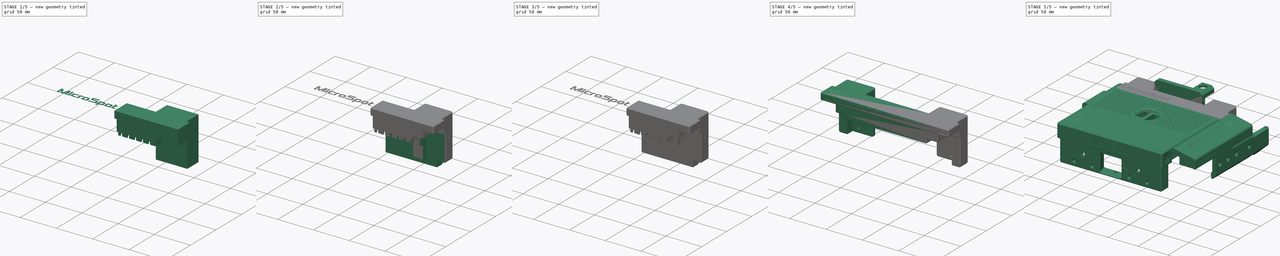
[diagram: build sequence overview — one tinted view per stage of 5, left to right]
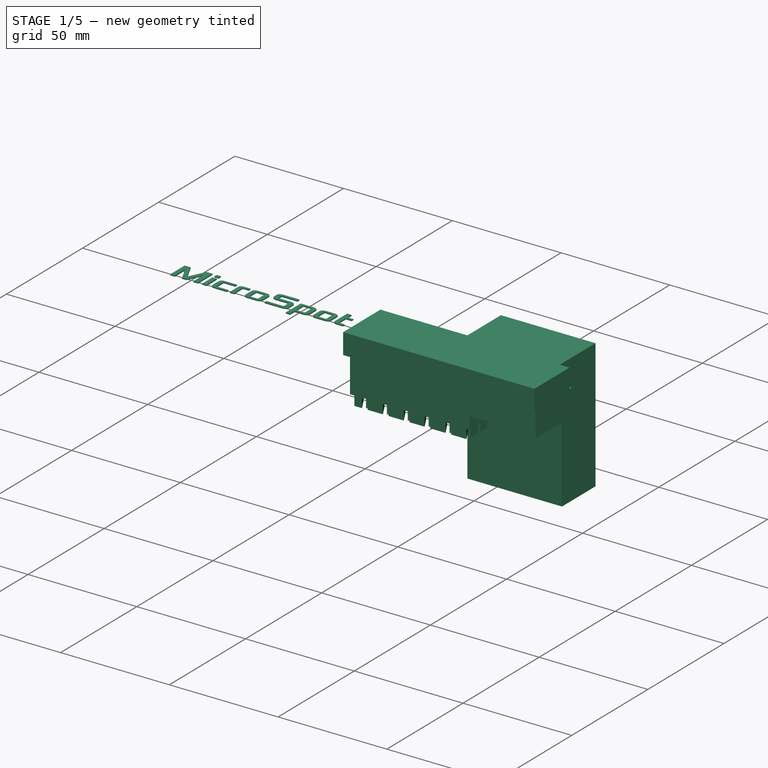
[diagram: stage 1 of 5 — iso view after this stage's code; geometry added in this stage tinted green]
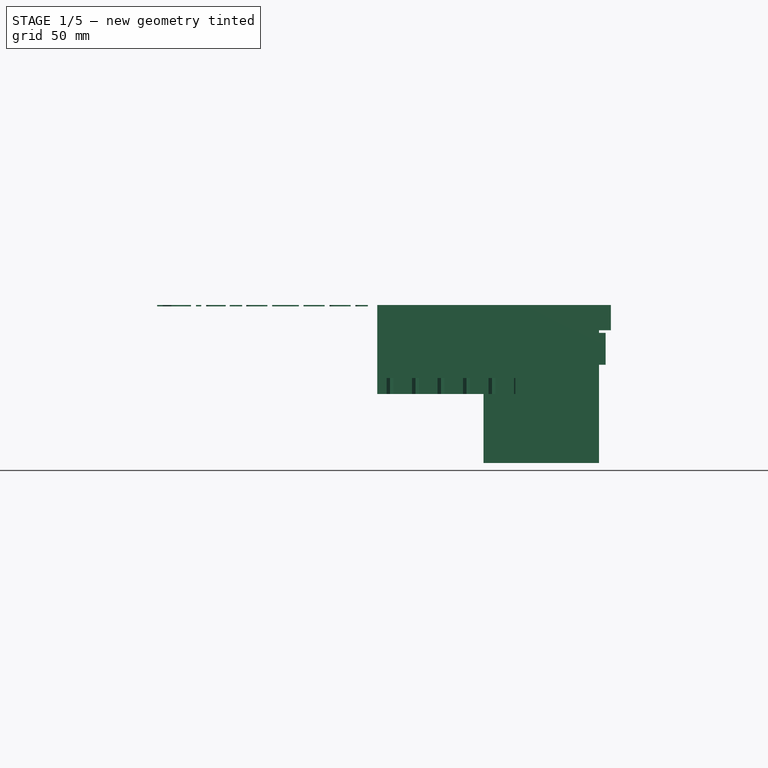
[diagram: stage 1 of 5 — front view after this stage's code; geometry added in this stage tinted green]
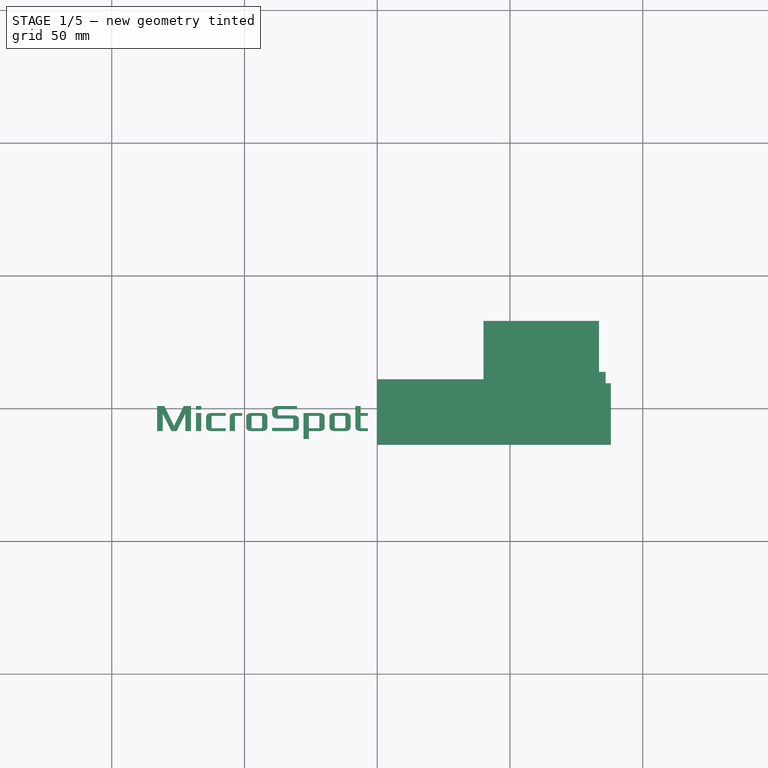
[diagram: stage 1 of 5 — top view after this stage's code; geometry added in this stage tinted green]
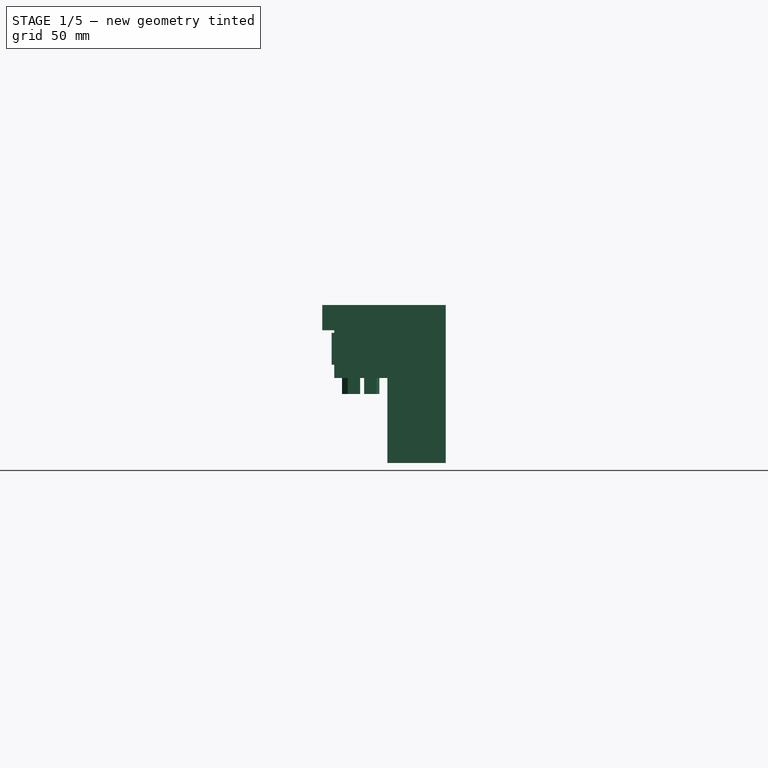
[diagram: stage 1 of 5 — right view after this stage's code; geometry added in this stage tinted green]
FCSTD DOCUMENT  (FreeCAD 0.16RUnknown)
Label: UpperBackCover
License: All rights reserved
LicenseURL: http://en.wikipedia.org/wiki/All_rights_reserved
objects: Part::FeaturePython×36, Part::Cut×17, Sketcher::SketchObject×12, PartDesign::Pad×8, App::DocumentObjectGroup×7, Part::Box×5, Part::Fillet×4, Part::MultiFuse×3, Part::Feature×2, Part::Mirroring×2, PartDesign::Revolution×2, Part::MultiCommon×2, Spreadsheet::Sheet×1, Part::Sweep×1, Part::Part2DObjectPython×1, Part::Extrusion×1, Part::Chamfer×1
note: 107 computed .brp shape members not serialized (recipe doc carries the construction recipe); baked Part::Feature solids carry a one-line shape summary decoded from their .brp

FEATURE [Sketcher::SketchObject] Sketch001  label="Core"
  Placement = pos=(0,0,0) rot=(1,0,0;1.5708rad)
  expr: Constraints[17] = pars.EUVolume
  expr: Constraints[13] = pars.FrameClear + 5
  sketch-geometry (6):
    g0: LineSegment StartX=0 StartY=-26 StartZ=0 EndX=55 EndY=-26 EndZ=0
    g1: LineSegment StartX=55 StartY=-26 StartZ=0 EndX=55 EndY=-20.5 EndZ=0
    g2: LineSegment StartX=55 StartY=-20.5 StartZ=0 EndX=83.5 EndY=-20.5 EndZ=0
    g3: LineSegment StartX=83.5 StartY=-20.5 StartZ=0 EndX=83.5 EndY=1.5 EndZ=0
    g4: LineSegment StartX=83.5 StartY=1.5 StartZ=0 EndX=0 EndY=1.5 EndZ=0
    g5: LineSegment StartX=0 StartY=1.5 StartZ=0 EndX=0 EndY=-26 EndZ=0
  constraints (18):
    c: Coincident(g0,g1)
    c: Coincident(g1,g2)
    c: Coincident(g2,g3)
    c: Coincident(g3,g4)
    c: Coincident(g4,g5)
    c: Coincident(g5,g0)
    c: Vertical(g5)
    c: Vertical(g1)
    c: Vertical(g3)
    c: Horizontal(g4)
    c: Horizontal(g2)
    c: Horizontal(g0)
    c: DistanceX(g0,g0) = 55
    c: DistanceY(g1,g1) = 5.5
    c: DistanceX(g2) = 83.5
    c: PointOnObject(g4,g-2)
    c: DistanceY(g0) = -26
    c: DistanceY(g4) = 1.5
FEATURE [PartDesign::Pad] Pad  label="Core001"
  Length = 20
  Length2 = 8.5
  Midplane = true
  Placement = pos=(0,0,0) rot=(1,0,0;1.5708rad)
  Sketch = -> Sketch001
  Type = 0
  expr: Length2 = 9 - pars.ElecClear
FEATURE [Sketcher::SketchObject] Sketch003  label="RailBase"
  Placement = pos=(0,0,1.5) rot=(0,0,1;0rad)
  expr: Placement.Base.z = pars.EUVolume
  expr: Constraints.BackWidth = 85 - pars.NEMAClear
  sketch-geometry (4):
    g0: LineSegment StartX=40 StartY=32 StartZ=0 EndX=83.5 EndY=32 EndZ=0
    g1: LineSegment StartX=83.5 StartY=32 StartZ=0 EndX=83.5 EndY=10 EndZ=0
    g2: LineSegment StartX=83.5 StartY=10 StartZ=0 EndX=40 EndY=10 EndZ=0
    g3: LineSegment StartX=40 StartY=10 StartZ=0 EndX=40 EndY=32 EndZ=0
  constraints (12):
    c: Coincident(g0,g1)
    c: Coincident(g1,g2)
    c: Coincident(g2,g3)
    c: Coincident(g3,g0)
    c: Horizontal(g0)
    c: Horizontal(g2)
    c: Vertical(g1)
    c: Vertical(g3)
    c: DistanceX(g2) = 40
    c: DistanceY(g0) = 32  'RailDepth'
    c: DistanceY(g2) = 10
    c: DistanceX(g0) = 83.5  'BackWidth'
FEATURE [PartDesign::Pad] Pad002  label="RailBase001"
  Length = 59.5
  Length2 = 0
  Placement = pos=(0,0,1.5) rot=(0,0,1;0rad)
  Reversed = true
  Sketch = -> Sketch003
  Type = 0
  expr: Length = 58 + pars.EUVolume
FEATURE [Part::Part2DObjectPython] ShapeString  label="Sign"  # Draft 2D object (typed FeaturePython)
  FontFile = ./../../../Fonts/Xolonium-Regular.otf
  Placement = pos=(-84,-9.5,1.5) rot=(0,0,1;0rad)
  Size = 5.5
  String = MicroSpot
  Tracking = 0
  expr: Placement.Base.z = pars.EUVolume
FEATURE [Part::Extrusion] Extrude  label="Sign001"
  Base = -> ShapeString
  Dir = (0,0,-0.5)
  Solid = true
FEATURE [App::DocumentObjectGroup] Group005  label="Sign_src"
  Group = -> [ShapeString,Extrude]
FEATURE [Part::Box] Box004  label="MRDomain"
  Height = 15
  Length = 52
  Placement = pos=(0,-8,-3) rot=(-1,0,0;1.5708rad)
  Width = 29
FEATURE [Sketcher::SketchObject] Sketch020  label="MRTriangle"
  expr: Constraints[13] = pars.MRWallWidth / 2
  expr: Constraints[6] = pars.MRTriSide
  sketch-geometry (5):
    g0: LineSegment StartX=7.56218 StartY=3.5 StartZ=0 EndX=1.5 EndY=0 EndZ=0
    g1: LineSegment StartX=1.5 StartY=0 StartZ=0 EndX=7.56218 EndY=-3.5 EndZ=0
    g2: LineSegment StartX=7.56218 StartY=-3.5 StartZ=0 EndX=7.56218 EndY=3.5 EndZ=0
    g3: LineSegment [constr] StartX=0 StartY=0 StartZ=0 EndX=1.125 EndY=0.649519 EndZ=0
    g4: LineSegment [constr] StartX=1.5 StartY=0 StartZ=0 EndX=1.125 EndY=0.649519 EndZ=0
  constraints (14):
    c: Coincident(g1,g2)
    c: Coincident(g2,g0)
    c: Equal(g2,g1)
    c: Equal(g1,g0)
    c: Coincident(g0,g1)
    c: Vertical(g2)
    c: DistanceY(g2,g2) = 7
    c: PointOnObject(g0,g-1)
    c: Coincident(g3,g4)
    c: Coincident(g3,g-1)
    c: Coincident(g4,g0)
    c: Perpendicular(g3,g4)
    c: Parallel(g3,g0)
    c: Distance(g4) = 0.75
FEATURE [PartDesign::Pad] Pad008  label="MRTriangle001"
  Length = 50
  Length2 = 100
  Sketch = -> Sketch020
  Type = 0
FEATURE [Part::FeaturePython] Array  label="TrianglePolar"  # Draft array (typed FeaturePython)
  Angle = 360
  ArrayType = 1
  Axis = (0,0,1)
  Base = -> Pad008
  Center = (0,0,0)
  Fuse = false
  IntervalAxis = (0,0,0)
  IntervalX = (1,0,0)
  IntervalY = (0,1,0)
  IntervalZ = (0,0,0)
  NumberPolar = 6
  NumberX = 2
  NumberY = 2
  NumberZ = 1
  Placement = pos=(0,0,0) rot=(0,0,1;1.5708rad)
FEATURE [Part::FeaturePython] Array001  label="MR_Pattern"  # Draft array (typed FeaturePython)
  Angle = 360
  ArrayType = 0
  Axis = (0,0,1)
  Base = -> Array
  Center = (0,0,0)
  Fuse = false
  IntervalAxis = (0,0,0)
  IntervalX = (14.3971,8.31218,0)
  IntervalY = (-14.3971,8.31218,0)
  IntervalZ = (0,0,0)
  NumberPolar = 1
  NumberX = 8
  NumberY = 8
  NumberZ = 1
  expr: IntervalY.x = -1 * (pars.MRWallWidth * cos(30) + pars.MRTriSide + pars.MRWallWidth * cos(30) + pars.MRTriSide / 2 + pars.MRWallWidth * cos(30))
  expr: IntervalY.y = pars.MRWallWidth + pars.MRTriSide * cos(30) + pars.MRWallWidth * cos(60)
  expr: IntervalX.x = pars.MRWallWidth * cos(30) + pars.MRTriSide + pars.MRWallWidth * cos(30) + pars.MRTriSide / 2 + pars.MRWallWidth * cos(30)
  expr: IntervalX.y = pars.MRWallWidth + pars.MRTriSide * cos(30) + pars.MRWallWidth * cos(60)
FEATURE [Part::FeaturePython] Clone015  label="Clone of MR_Pattern"  # Draft clone (typed FeaturePython)
  Objects = -> [Array001]
  Placement = pos=(0,-66,-39) rot=(0,0,1;0rad)
  Scale = (1,1,1)
FEATURE [Part::MultiCommon] Common001  label="CoreMRTool"
  Shapes = -> [Clone015,Box004]
FEATURE [Sketcher::SketchObject] Sketch021  label="MagnetSlot"
  expr: Constraints[10] = 5 + pars.MagTol
  expr: Constraints[9] = 10 + pars.MagTol
  sketch-geometry (4):
    g0: LineSegment StartX=-5.1 StartY=2.6 StartZ=0 EndX=5.1 EndY=2.6 EndZ=0
    g1: LineSegment StartX=5.1 StartY=2.6 StartZ=0 EndX=5.1 EndY=-2.6 EndZ=0
    g2: LineSegment StartX=5.1 StartY=-2.6 StartZ=0 EndX=-5.1 EndY=-2.6 EndZ=0
    g3: LineSegment StartX=-5.1 StartY=-2.6 StartZ=0 EndX=-5.1 EndY=2.6 EndZ=0
  constraints (11):
    c: Coincident(g0,g1)
    c: Coincident(g1,g2)
    c: Coincident(g2,g3)
    c: Coincident(g3,g0)
    c: Horizontal(g0)
    c: Horizontal(g2)
    c: Vertical(g1)
    c: Vertical(g3)
    c: Symmetric(g0,g1,g-1)
    c: DistanceX(g0,g0) = 10.2
    c: DistanceY(g1,g1) = 5.2
FEATURE [PartDesign::Pad] Pad009  label="MagnetSlot001"
  Length = 1
  Length2 = 100
  Sketch = -> Sketch021
  Type = 0
FEATURE [App::DocumentObjectGroup] Group  label="Reference"
  Group = -> [ElecBase_step1_01,RBackCorner_step1_01,LBackCorner_step1_01,AxisShield_01,Part__Mirroring007001001,Part__Feature002,FrontCrane_01,SampleTray_01,YCarriage_01,UpperLidRail_01,UpperCover_01,DrawerGuide_01]
FEATURE [Part::Box] Box006  label="DrawerSpace"
  Height = 12
  Length = 24
  Placement = pos=(86,-11,-21) rot=(0,0,1;1.5708rad)
  Width = 16
FEATURE [Part::FeaturePython] Clone022  label="Clone of MagnetSlot001"  # Draft clone (typed FeaturePython)
  Objects = -> [Pad009]
  Placement = pos=(79,-14.5,-4) rot=(-1,0,0;1.5708rad)
  Scale = (1,1,1)
FEATURE [Sketcher::SketchObject] Sketch022  label="Lid"
  Placement = pos=(0,0,1.5) rot=(0,0,1;0rad)
  expr: Placement.Base.z = pars.EUVolume
  expr: Constraints[9] = 10 - pars.NEMAClear
  sketch-geometry (4):
    g0: LineSegment StartX=88 StartY=-14.5 StartZ=0 EndX=0 EndY=-14.5 EndZ=0
    g1: LineSegment StartX=0 StartY=-14.5 StartZ=0 EndX=0 EndY=8.5 EndZ=0
    g2: LineSegment StartX=0 StartY=8.5 StartZ=0 EndX=88 EndY=8.5 EndZ=0
    g3: LineSegment StartX=88 StartY=8.5 StartZ=0 EndX=88 EndY=-14.5 EndZ=0
  constraints (12):
    c: Coincident(g0,g1)
    c: Coincident(g1,g2)
    c: Coincident(g2,g3)
    c: Coincident(g3,g0)
    c: Horizontal(g0)
    c: Horizontal(g2)
    c: Vertical(g1)
    c: Vertical(g3)
    c: DistanceY(g0) = -14.5
    c: DistanceY(g2) = 8.5
    c: DistanceX(g3) = 88
    c: PointOnObject(g1,g-2)
FEATURE [PartDesign::Pad] Pad011  label="Lid001"
  Length = 9.5
  Length2 = 0
  Placement = pos=(0,0,1.5) rot=(0,0,1;0rad)
  Reversed = true
  Sketch = -> Sketch022
  Type = 0
  expr: Length = 8 + pars.EUVolume
FEATURE [Part::MultiFuse] Fusion004  label="MainFusion"
  Shapes = -> [Pad,Pad002,Pad011]
FEATURE [Part::FeaturePython] Clone024  label="Clone of CoreMRTool_old"  # Draft clone (typed FeaturePython)
  Objects = -> [Common001]
  Scale = (1,1,1)
FEATURE [Part::FeaturePython] Clone025  label="Clone of Sign001"  # Draft clone (typed FeaturePython)
  Objects = -> [Extrude]
  Scale = (1,1,1)
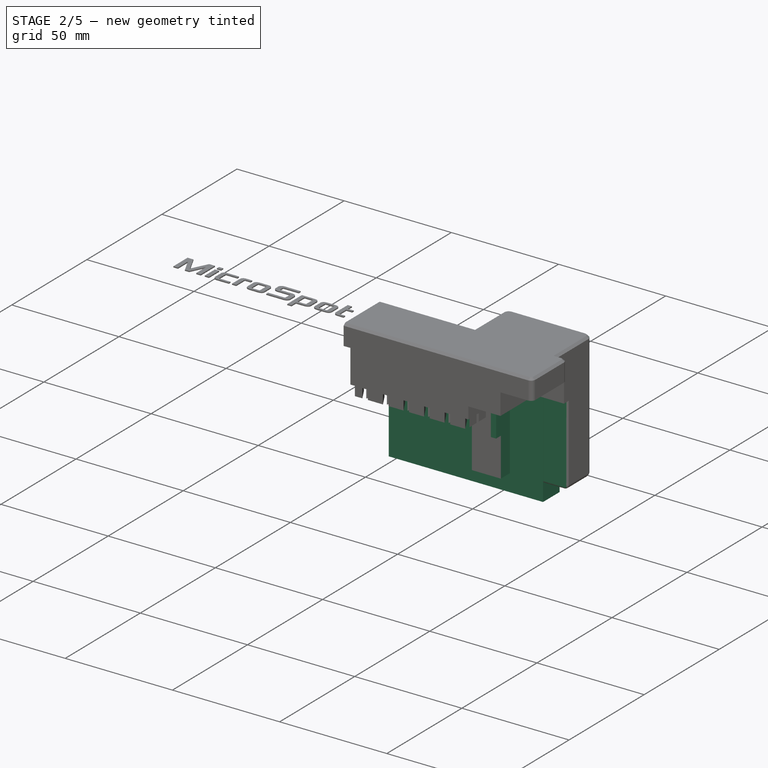
[diagram: stage 2 of 5 — iso view after this stage's code; geometry added in this stage tinted green]
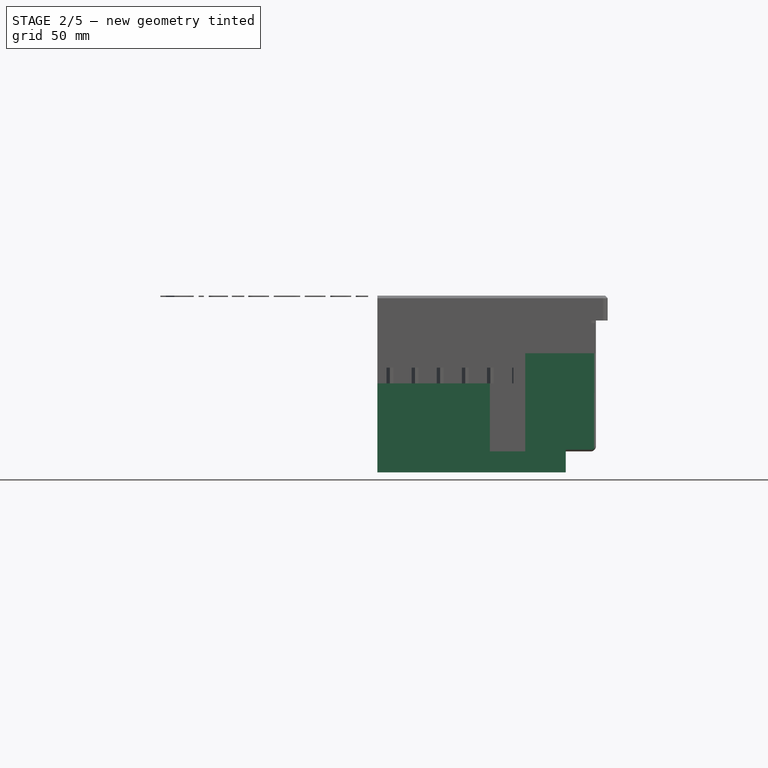
[diagram: stage 2 of 5 — front view after this stage's code; geometry added in this stage tinted green]
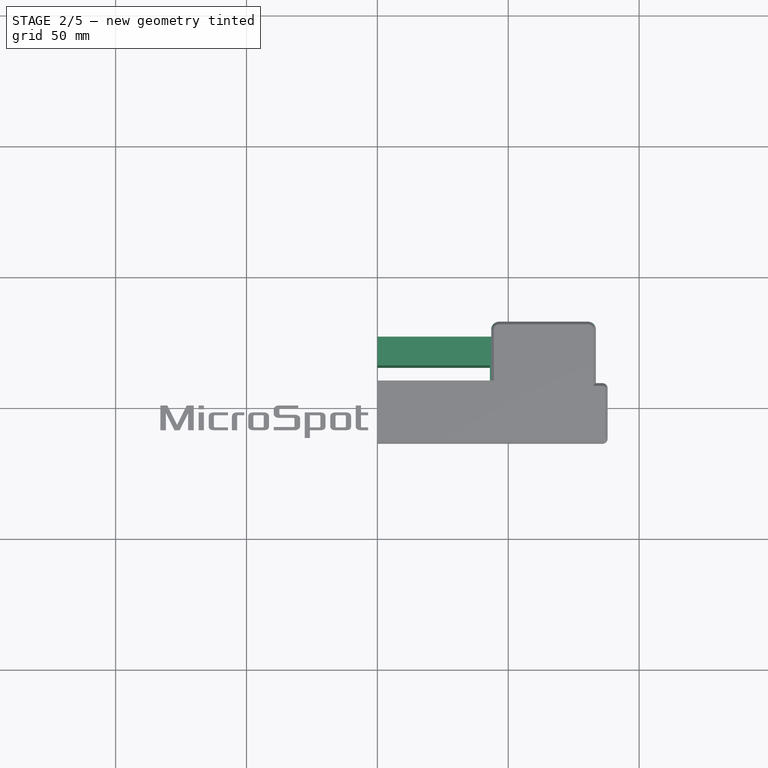
[diagram: stage 2 of 5 — top view after this stage's code; geometry added in this stage tinted green]
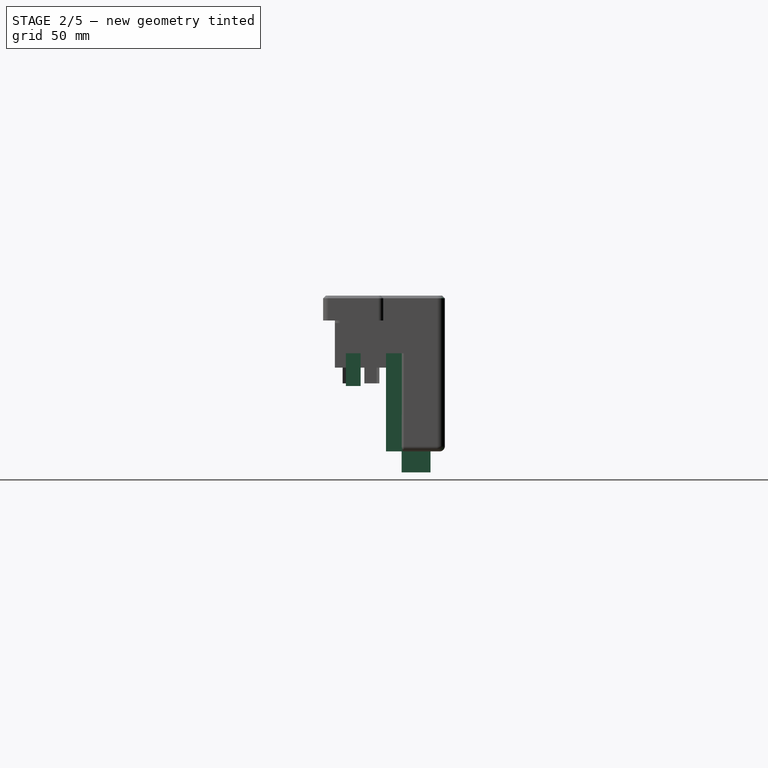
[diagram: stage 2 of 5 — right view after this stage's code; geometry added in this stage tinted green]
FEATURE [Part::Box] Box  label="RailSpace"
  Height = 46.5
  Length = 13.5
  Placement = pos=(43,9.5,-58) rot=(0,0,1;0rad)
  Width = 17
  expr: Placement.Base.y = 10 - pars.ElecClear
  expr: Height = 46 + pars.RailClear
  expr: Width = 16 + pars.RailClear + pars.ElecClear
  expr: Length = 13 + pars.RailClear
FEATURE [Part::Box] Box001  label="FrameSpace"
  Height = 37.5
  Length = 40
  Placement = pos=(55,10,-58) rot=(0,0,1;0rad)
  Width = 5.5
  expr: Height = pars.FrameClear + 37
  expr: Width = pars.FrameClear + 5
FEATURE [Part::Box] Box002  label="ElecSpace"
  Height = 50.5
  Length = 62
  Placement = pos=(0,60,1.5) rot=(0.57735,0.57735,-0.57735;2.0944rad)
  Width = 43.5
  expr: Placement.Base.z = pars.EUVolume
  expr: Height = pars.ElecClear + 50
  expr: Width = pars.ElecClear + 43
FEATURE [App::DocumentObjectGroup] Group002  label="Guide_src"
  Group = -> [refine001,Sketch002]
FEATURE [Sketcher::SketchObject] Sketch017  label="DIN934M3Slot"
  expr: Constraints[13] = pars.NutWidthClearmm + 5.5
  sketch-geometry (6):
    g0: LineSegment StartX=-2.8 StartY=20 StartZ=0 EndX=-2.8 EndY=-1.61658 EndZ=0
    g1: LineSegment StartX=-2.8 StartY=-1.61658 StartZ=0 EndX=0 EndY=-3.23316 EndZ=0
    g2: LineSegment StartX=0 StartY=-3.23316 StartZ=0 EndX=2.8 EndY=-1.61658 EndZ=0
    g3: LineSegment StartX=2.8 StartY=-1.61658 StartZ=0 EndX=2.8 EndY=20 EndZ=0
    g4: LineSegment StartX=2.8 StartY=20 StartZ=0 EndX=-2.8 EndY=20 EndZ=0
    g5: Circle [constr] CenterX=0 CenterY=0 CenterZ=0 NormalX=0 NormalY=0 NormalZ=1 Radius=3.23316
  constraints (17):
    c: Coincident(g0,g1)
    c: Coincident(g1,g2)
    c: Coincident(g2,g3)
    c: Coincident(g3,g4)
    c: Coincident(g0,g4)
    c: Horizontal(g4)
    c: Vertical(g0)
    c: Vertical(g3)
    c: Coincident(g5,g-1)
    c: PointOnObject(g0,g5)
    c: PointOnObject(g2,g5)
    c: PointOnObject(g1,g5)
    c: PointOnObject(g1,g-2)
    c: DistanceX(g4,g4) = 5.6
    c: Symmetric(g0,g3,g-2)
    c: Angle(g2,g1) = 2.0944
    c: DistanceY(g0) = 20
FEATURE [PartDesign::Pad] Pad005  label="DIN934M3Slot001"
  Length = 2.4
  Length2 = 100
  Sketch = -> Sketch017
  Type = 0
FEATURE [Sketcher::SketchObject] Sketch013  label="DIN934M3Nut"
  expr: Constraints[19] = pars.NutWidthClearmm + 5.5
  sketch-geometry (7):
    g0: LineSegment StartX=2.8 StartY=-1.61658 StartZ=0 EndX=2.8 EndY=1.61658 EndZ=0
    g1: LineSegment StartX=2.8 StartY=1.61658 StartZ=0 EndX=0 EndY=3.23316 EndZ=0
    g2: LineSegment StartX=0 StartY=3.23316 StartZ=0 EndX=-2.8 EndY=1.61658 EndZ=0
    g3: LineSegment StartX=-2.8 StartY=1.61658 StartZ=0 EndX=-2.8 EndY=-1.61658 EndZ=0
    g4: LineSegment StartX=-2.8 StartY=-1.61658 StartZ=0 EndX=0 EndY=-3.23316 EndZ=0
    g5: LineSegment StartX=0 StartY=-3.23316 StartZ=0 EndX=2.8 EndY=-1.61658 EndZ=0
    g6: Circle [constr] CenterX=0 CenterY=0 CenterZ=0 NormalX=0 NormalY=0 NormalZ=1 Radius=3.23316
  constraints (16):
    c: Coincident(g0,g1)
    c: Coincident(g1,g2)
    c: Coincident(g2,g3)
    c: Coincident(g3,g4)
    c: Coincident(g4,g5)
    c: Coincident(g5,g0)
    c: Equal(g0, g1-g5) x5
    c: PointOnObject(g0,g6)
    c: PointOnObject(g1,g6)
    c: PointOnObject(g2,g6)
    c: PointOnObject(g3,g6)
    c: PointOnObject(g4,g6)
    c: PointOnObject(g5,g6)
    c: Coincident(g-1,g6)
    c: Vertical(g3)
    c: DistanceX(g2,g0) = 5.6
FEATURE [PartDesign::Pad] Pad006  label="DIN934M3Nut001"
  Length = 2.5
  Length2 = 100
  Sketch = -> Sketch013
  Type = 0
  expr: Length = pars.NutThickClearmm + 2.4
FEATURE [Part::FeaturePython] Clone003  label="Clone of DIN934M3Nut001"  # Draft clone (typed FeaturePython)
  Objects = -> [Pad006]
  Placement = pos=(64,18,-18) rot=(1,0,0;1.5708rad)
  Scale = (1,1,1)
FEATURE [Sketcher::SketchObject] Sketch018  label="RailTool"
  Placement = pos=(0,26.5,0) rot=(1,0,0;1.5708rad)
  expr: Constraints[13] = -12 + pars.RailClear
  expr: Placement.Base.y = pars.RailClear + 26
  sketch-geometry (5):
    g0: LineSegment StartX=64 StartY=-11.5 StartZ=0 EndX=0 EndY=-11.5 EndZ=0
    g1: LineSegment StartX=0 StartY=-11.5 StartZ=0 EndX=0 EndY=-66 EndZ=0
    g2: LineSegment StartX=0 StartY=-66 StartZ=0 EndX=72 EndY=-66 EndZ=0
    g3: LineSegment StartX=72 StartY=-66 StartZ=0 EndX=72 EndY=-19.5 EndZ=0
    g4: ArcOfCircle CenterX=64 CenterY=-19.5 CenterZ=0 NormalX=0 NormalY=0 NormalZ=1 Radius=8 StartAngle=0 EndAngle=1.5708
  constraints (14):
    c: Coincident(g0,g1)
    c: Coincident(g1,g2)
    c: Coincident(g2,g3)
    c: Horizontal(g0)
    c: Horizontal(g2)
    c: Vertical(g1)
    c: Vertical(g3)
    c: PointOnObject(g0,g-2)
    c: Tangent(g0,g4) = -1.5708
    c: Tangent(g3,g4) = -1.5708
    c: DistanceX(g4) = 64
    c: Radius(g4) = 8
    c: DistanceY(g1) = -66
    c: DistanceY(g0) = -11.5
FEATURE [PartDesign::Pad] Pad007  label="RailTool001"
  Length = 11
  Length2 = 100
  Placement = pos=(0,26.5,0) rot=(1,0,0;1.5708rad)
  Sketch = -> Sketch018
  Type = 0
FEATURE [Part::FeaturePython] Clone007  label="Clone of RailTool001"  # Draft clone (typed FeaturePython)
  Objects = -> [Pad007]
  Placement = pos=(0,26.5,0) rot=(1,0,0;1.5708rad)
  Scale = (1,1,1)
FEATURE [Part::FeaturePython] Clone010  label="Clone of DIN934M3Slot001"  # Draft clone (typed FeaturePython)
  Objects = -> [Pad005]
  Placement = pos=(65,-3,-13) rot=(0.57735,0.57735,-0.57735;4.18879rad)
  Scale = (1,1,1)
FEATURE [Part::FeaturePython] refine  label="refine_MainFusion"  # WARN: FeaturePython — macro-defined, semantics opaque (R4)
  Base = -> Fusion004
FEATURE [Part::Cut] Cut  label="ElecCut"
  Base = -> refine
  Tool = -> Box002
FEATURE [Part::Fillet] Fillet  label="ExteriorFillet"
  Base = -> Cut
  Edges = 11 edges: [Edge2 r=2,Edge12 r=2,Edge18 r=3,Edge19 r=2,Edge21 r=2,Edge22 r=2,Edge23 r=2,Edge24 r=3,Edge31 r=2,Edge32 r=2,Edge41 r=2]
FEATURE [Part::Chamfer] Chamfer  label="ExteriorChamfer"
  Base = -> Fillet
  Edges = 2 edges r=1: [Edge8,Edge14]
FEATURE [Part::Cut] Cut001  label="FrameCut"
  Base = -> Chamfer
  Tool = -> Box001
FEATURE [Part::Cut] Cut017  label="DrawerCut"
  Base = -> Cut001
  Tool = -> Box006
FEATURE [Part::FeaturePython] refine006  label="refine_DrawerCut"  # WARN: FeaturePython — macro-defined, semantics opaque (R4)
  Base = -> Cut017
FEATURE [Part::Fillet] Fillet004  label="FrameFillet"
  Base = -> refine006
  Edges = 1 edges r=1: [Edge62]
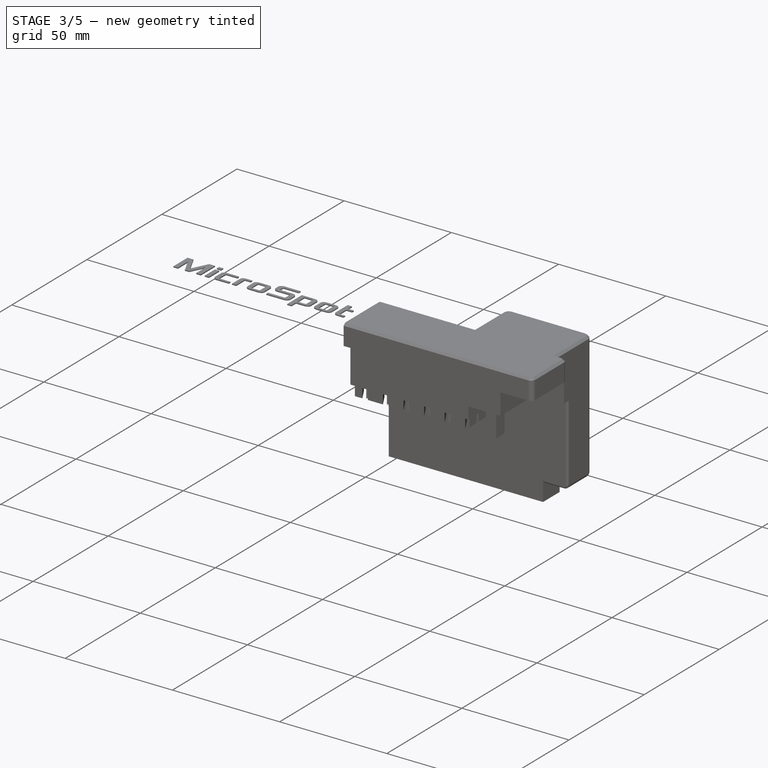
[diagram: stage 3 of 5 — iso view after this stage's code; geometry added in this stage tinted green]
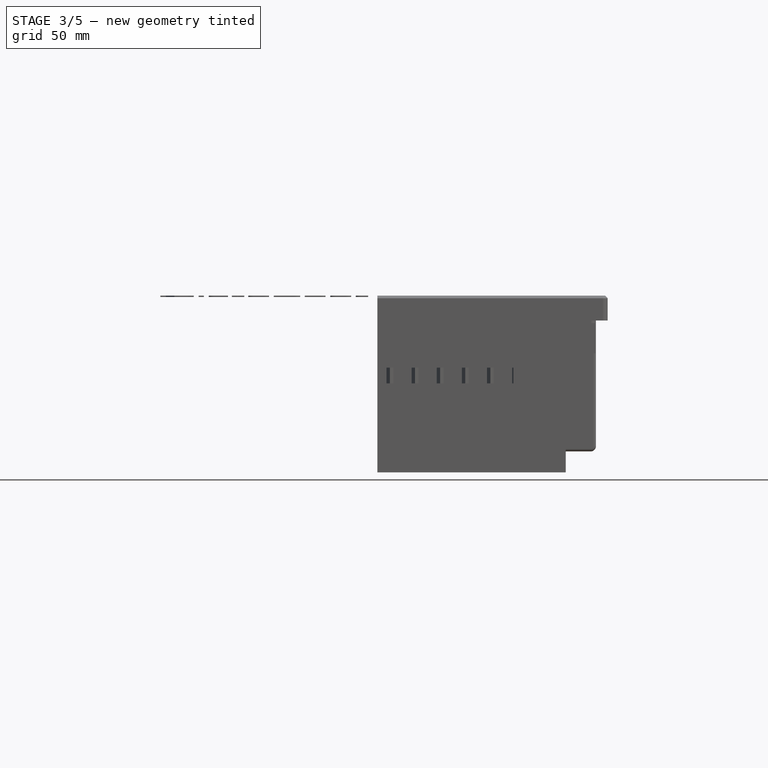
[diagram: stage 3 of 5 — front view after this stage's code; geometry added in this stage tinted green]
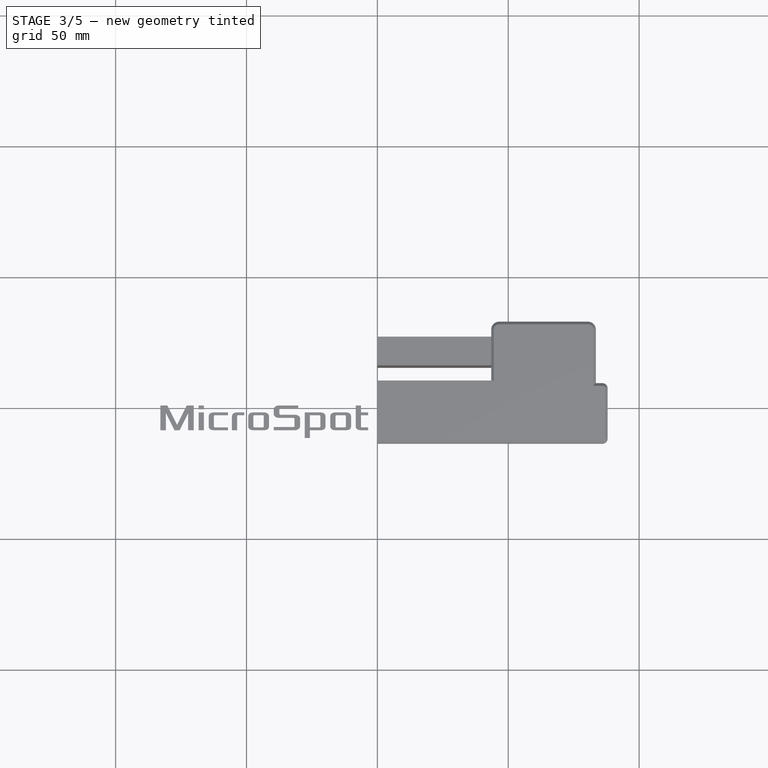
[diagram: stage 3 of 5 — top view after this stage's code; geometry added in this stage tinted green]
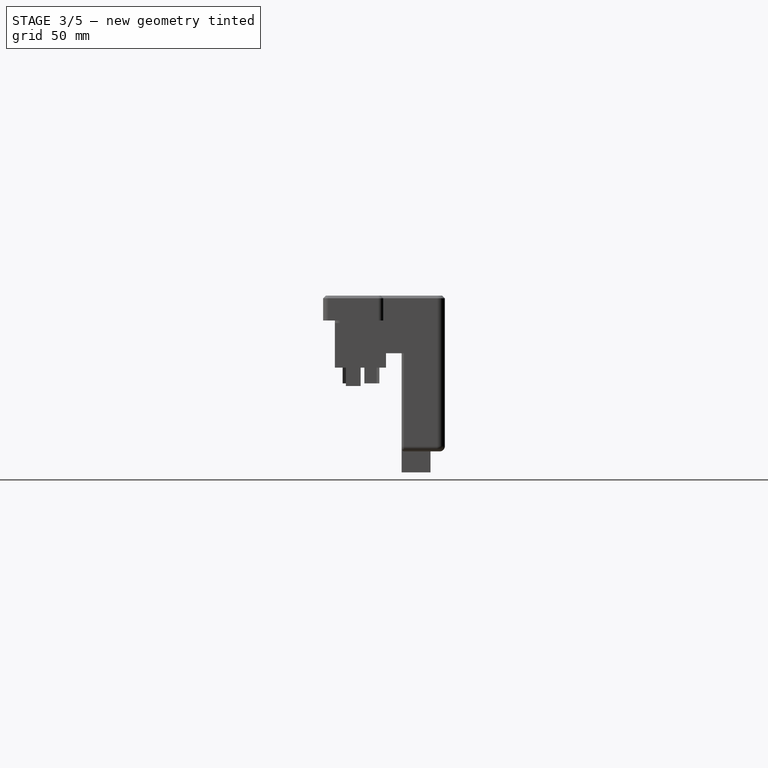
[diagram: stage 3 of 5 — right view after this stage's code; geometry added in this stage tinted green]
FEATURE [Sketcher::SketchObject] Sketch002  label="RailPath"
  Placement = pos=(0,0,0) rot=(1,0,0;1.5708rad)
  expr: Constraints[9] = pars.RailLen / 2
  sketch-geometry (3):
    g0: LineSegment StartX=6.5 StartY=0 StartZ=0 EndX=6.5 EndY=19 EndZ=0
    g1: ArcOfCircle CenterX=10.5 CenterY=19 CenterZ=0 NormalX=0 NormalY=0 NormalZ=1 Radius=4 StartAngle=1.5708 EndAngle=3.14159
    g2: LineSegment StartX=10.5 StartY=23 StartZ=0 EndX=18.5 EndY=23 EndZ=0
  constraints (11):
    c: Coincident(g1,g0)
    c: Tangent(g1,g0)
    c: Vertical(g0)
    c: PointOnObject(g0,g-1)
    c: Horizontal(g2)
    c: Coincident(g2,g1)
    c: Tangent(g2,g1)
    c: DistanceX(g1) = 10.5
    c: DistanceX(g2,g2) = 8
    c: DistanceY(g0,g0) = 19
    c: Radius(g1) = 4
FEATURE [Sketcher::SketchObject] Sketch011  label="RailSection"
  expr: Constraints[6] = pars.BallShapeTol + 3
  sketch-geometry (4):
    g0: Circle [constr] CenterX=10 CenterY=-2.5e-11 CenterZ=0 NormalX=0 NormalY=0 NormalZ=1 Radius=2.946
    g1: LineSegment StartX=10.2 StartY=4.36627 StartZ=0 EndX=5.83373 EndY=0 EndZ=0
    g2: LineSegment StartX=5.83373 StartY=0 StartZ=0 EndX=10.2 EndY=-4.36627 EndZ=0
    g3: LineSegment StartX=10.2 StartY=-4.36627 StartZ=0 EndX=10.2 EndY=4.36627 EndZ=0
  constraints (12):
    c: Coincident(g1,g2)
    c: Coincident(g2,g3)
    c: Coincident(g1,g3)
    c: Vertical(g3)
    c: Perpendicular(g2,g1)
    c: Angle(g1) = -2.35619
    c: Radius(g0) = 2.946
    c: Tangent(g1,g0)
    c: Tangent(g0,g2)
    c: DistanceX(g0) = 10
    c: DistanceX(g1) = 10.2
    c: PointOnObject(g1,g-1)
FEATURE [Part::Sweep] Sweep  label="RailSweep"
  Frenet = false
  Sections = -> [Sketch011]
  Solid = true
  Spine = -> Sketch002 [Edge1,Edge2,Edge3]
  Transition = 1
FEATURE [Part::Fillet] Fillet003  label="RailFillet"
  Base = -> Sweep
  Edges = 1 edges r=2.6: [Edge17]
FEATURE [Part::Mirroring] Part__Mirroring  label="RailFillet (Mirror #1)"
  Base = (0,0,0)
  Normal = (0,0,1)
  Source = -> Fillet003
FEATURE [Part::MultiFuse] Fusion001  label="GuideMirror"
  Shapes = -> [Part__Mirroring,Fillet003]
FEATURE [Part::FeaturePython] refine001  label="Guide"  # WARN: FeaturePython — macro-defined, semantics opaque (R4)
  Base = -> Fusion001
FEATURE [Sketcher::SketchObject] Sketch010  label="DIN7991M3Bolt"
  expr: Constraints[11] = pars.CilLoose + 1.5
  sketch-geometry (5):
    g0: LineSegment StartX=0 StartY=0 StartZ=0 EndX=3.3 EndY=0 EndZ=0
    g1: LineSegment StartX=3.3 StartY=0 StartZ=0 EndX=1.6 EndY=-1.7 EndZ=0
    g2: LineSegment StartX=1.6 StartY=-1.7 StartZ=0 EndX=1.6 EndY=-20 EndZ=0
    g3: LineSegment StartX=1.6 StartY=-20 StartZ=0 EndX=0 EndY=-20 EndZ=0
    g4: LineSegment StartX=0 StartY=-20 StartZ=0 EndX=0 EndY=0 EndZ=0
  constraints (14):
    c: Coincident(g0,g1)
    c: Coincident(g1,g2)
    c: Coincident(g2,g3)
    c: Coincident(g3,g4)
    c: Coincident(g4,g0)
    c: Vertical(g4)
    c: Vertical(g2)
    c: Horizontal(g0)
    c: Horizontal(g3)
    c: Coincident(g0,g-1)
    c: Angle(g0,g1) = 0.785398
    c: DistanceX(g3,g3) = 1.6
    c: DistanceY(g4,g4) = 20
    c: DistanceY(g1,g0) = 1.7
FEATURE [PartDesign::Revolution] Revolution001  label="DIN7991M3Bolt001"
  Angle = 360
  Axis = (0,1,0)
  Base = (0,0,0)
  ReferenceAxis = -> Sketch010 [V_Axis]
  Reversed = true
  Sketch = -> Sketch010
FEATURE [Part::FeaturePython] Clone  label="Clone of DIN7991M3Bolt001"  # Draft clone (typed FeaturePython)
  Objects = -> [Revolution001]
  Placement = pos=(64,32,-18) rot=(0,0,1;0rad)
  Scale = (1,1,1)
  expr: Placement.Base.y = RailBase.Constraints.RailDepth
FEATURE [Part::FeaturePython] Clone001  label="Clone of DIN7991M3Bolt002"  # Draft clone (typed FeaturePython)
  Objects = -> [Revolution001]
  Placement = pos=(64,32,-52) rot=(0,0,1;0rad)
  Scale = (1,1,1)
  expr: Placement.Base.y = RailBase.Constraints.RailDepth
FEATURE [Part::FeaturePython] Clone002  label="Clone of Guide"  # Draft clone (typed FeaturePython)
  Objects = -> [refine001]
  Placement = pos=(65.67,20,-35) rot=(0,0,1;3.14159rad)
  Scale = (1,1,1)
  expr: Placement.Base.x = 66 - pars.GuideTight
FEATURE [Part::FeaturePython] Clone004  label="Clone of DIN934M3Nut002"  # Draft clone (typed FeaturePython)
  Objects = -> [Pad006]
  Placement = pos=(64,18,-52) rot=(1,0,0;1.5708rad)
  Scale = (1,1,1)
FEATURE [Part::Cut] Cut002  label="RailCut"
  Base = -> Fillet004
  Tool = -> Box
FEATURE [Part::Cut] Cut003  label="GuideCut"
  Base = -> Cut002
  Tool = -> Clone002
FEATURE [Part::Cut] Cut004
  Base = -> Cut003
  Tool = -> Clone003
FEATURE [Part::Cut] Cut005  label="RailNutsCut"
  Base = -> Cut004
  Tool = -> Clone004
FEATURE [Part::Cut] Cut006
  Base = -> Cut005
  Tool = -> Clone
FEATURE [Part::Cut] Cut007  label="RailBoltCut"
  Base = -> Cut006
  Tool = -> Clone001
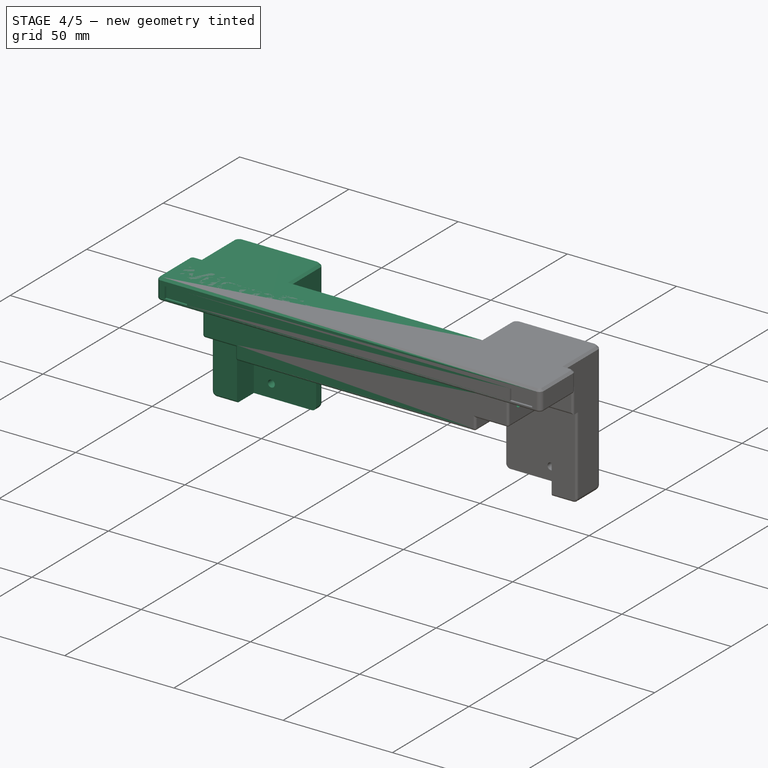
[diagram: stage 4 of 5 — iso view after this stage's code; geometry added in this stage tinted green]
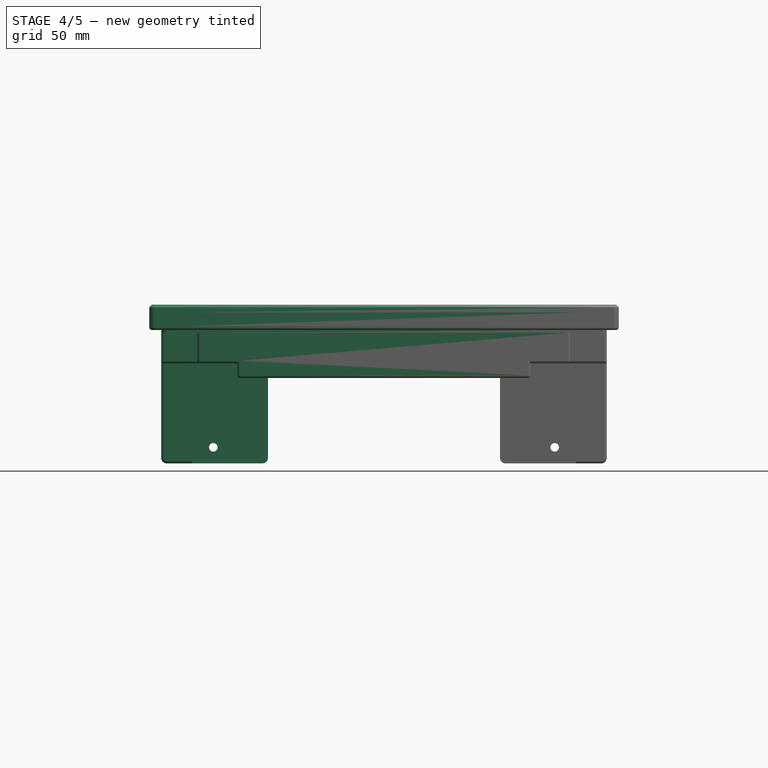
[diagram: stage 4 of 5 — front view after this stage's code; geometry added in this stage tinted green]
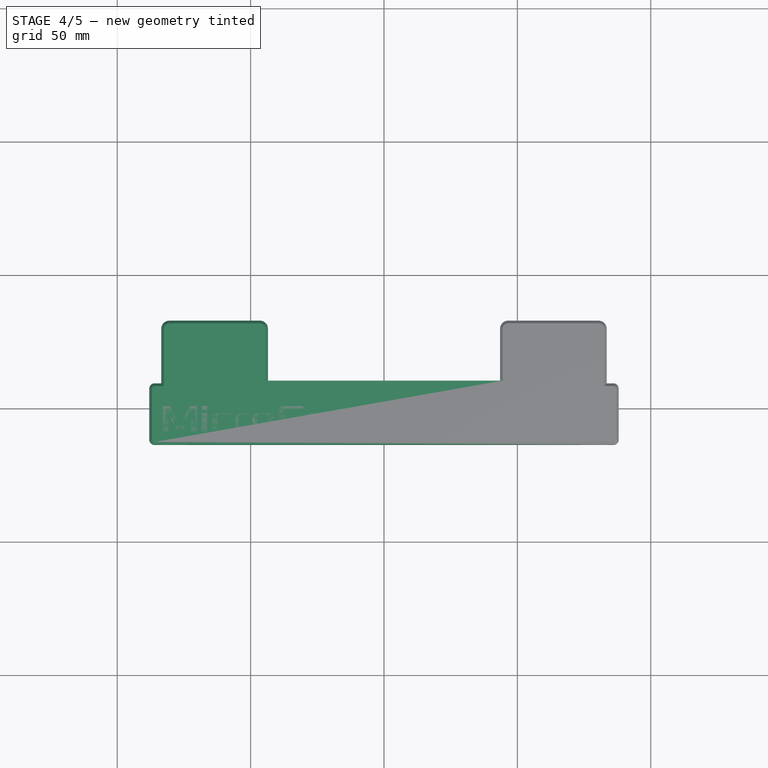
[diagram: stage 4 of 5 — top view after this stage's code; geometry added in this stage tinted green]
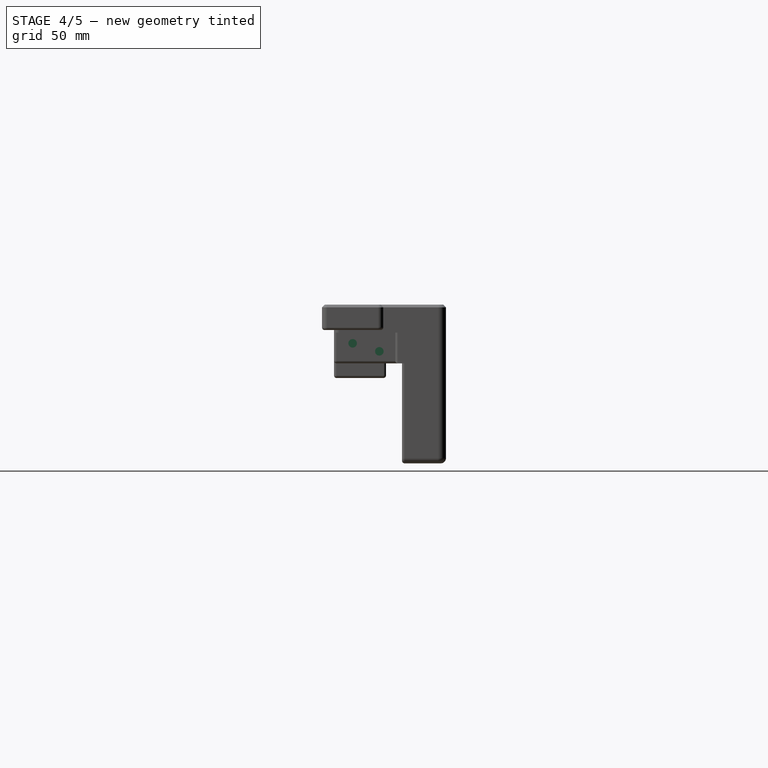
[diagram: stage 4 of 5 — right view after this stage's code; geometry added in this stage tinted green]
FEATURE [Part::FeaturePython] Clone011  label="Clone of DIN934M3Slot002"  # Draft clone (typed FeaturePython)
  Objects = -> [Pad005]
  Placement = pos=(65,7,-16) rot=(0.57735,0.57735,-0.57735;4.18879rad)
  Scale = (1,1,1)
FEATURE [Sketcher::SketchObject] Sketch019  label="DIN7991M3LongBolt"
  expr: Constraints[11] = pars.CilLoose + 1.5
  sketch-geometry (5):
    g0: LineSegment StartX=0 StartY=0 StartZ=0 EndX=3.3 EndY=0 EndZ=0
    g1: LineSegment StartX=3.3 StartY=0 StartZ=0 EndX=1.6 EndY=-1.7 EndZ=0
    g2: LineSegment StartX=1.6 StartY=-1.7 StartZ=0 EndX=1.6 EndY=-25 EndZ=0
    g3: LineSegment StartX=1.6 StartY=-25 StartZ=0 EndX=0 EndY=-25 EndZ=0
    g4: LineSegment StartX=0 StartY=-25 StartZ=0 EndX=0 EndY=0 EndZ=0
  constraints (14):
    c: Coincident(g0,g1)
    c: Coincident(g1,g2)
    c: Coincident(g2,g3)
    c: Coincident(g3,g4)
    c: Coincident(g4,g0)
    c: Vertical(g4)
    c: Vertical(g2)
    c: Horizontal(g0)
    c: Horizontal(g3)
    c: Coincident(g0,g-1)
    c: Angle(g0,g1) = 0.785398
    c: DistanceX(g3,g3) = 1.6
    c: DistanceY(g4,g4) = 25
    c: DistanceY(g1,g0) = 1.7
FEATURE [PartDesign::Revolution] Revolution  label="DIN7991M3LongBolt001"
  Angle = 360
  Axis = (0,1,0)
  Base = (0,0,0)
  ReferenceAxis = -> Sketch019 [V_Axis]
  Reversed = true
  Sketch = -> Sketch019
FEATURE [Part::FeaturePython] Clone012  label="Clone of DIN7991M3LongBolt001"  # Draft clone (typed FeaturePython)
  Objects = -> [Revolution]
  Placement = pos=(83.5,-3,-13) rot=(0,0,-1;1.5708rad)
  Scale = (1,1,1)
  expr: Placement.Base.x = 85 - pars.NEMAClear
FEATURE [Part::FeaturePython] Clone013  label="Clone of DIN7991M3LongBolt002"  # Draft clone (typed FeaturePython)
  Objects = -> [Revolution]
  Placement = pos=(83.5,7,-16) rot=(0,0,-1;1.5708rad)
  Scale = (1,1,1)
  expr: Placement.Base.x = 85 - pars.NEMAClear
FEATURE [App::DocumentObjectGroup] Group003  label="Rail_src"
  Group = -> [Pad007,Common,refine002]
FEATURE [Part::Cut] Cut008  label="RailCut001"
  Base = -> Cut007
  Tool = -> Clone007
FEATURE [Part::FeaturePython] refine003  label="refine_RailCut001"  # WARN: FeaturePython — macro-defined, semantics opaque (R4)
  Base = -> Cut008
FEATURE [Part::Cut] Cut009
  Base = -> refine003
  Tool = -> Clone010
FEATURE [Part::Cut] Cut010  label="DrawerNutSlots"
  Base = -> Cut009
  Tool = -> Clone011
FEATURE [Part::Cut] Cut011
  Base = -> Cut010
  Tool = -> Clone012
FEATURE [Part::Cut] Cut012  label="DrawerBoltsCut"
  Base = -> Cut011
  Tool = -> Clone013
FEATURE [Part::FeaturePython] refine004  label="refine_DrawerBoltsCut"  # WARN: FeaturePython — macro-defined, semantics opaque (R4)
  Base = -> Cut012
FEATURE [Part::Fillet] Fillet005  label="FinalFillet"
  Base = -> refine004
  Edges = 13 edges r=1: [Edge7,Edge23,Edge25,Edge28,Edge29,Edge30,Edge44,Edge92,Edge93,Edge98,Edge99,Edge100,Edge101]
FEATURE [Part::Cut] Cut018  label="MagnetCut"
  Base = -> Fillet005
  Tool = -> Clone022
FEATURE [Part::Cut] Cut015  label="MRCut"
  Base = -> Cut018
  Tool = -> Clone024
FEATURE [Part::Mirroring] Part__Mirroring007001004  label="MRCut (Mirror #3)"
  Base = (0,0,0)
  Normal = (1,0,0)
  Source = -> Cut015
FEATURE [Part::MultiFuse] Fusion  label="XMirror"
  Shapes = -> [Cut015,Part__Mirroring007001004]
FEATURE [Part::FeaturePython] refine005  label="refine_Mirroring"  # WARN: FeaturePython — macro-defined, semantics opaque (R4)
  Base = -> Fusion
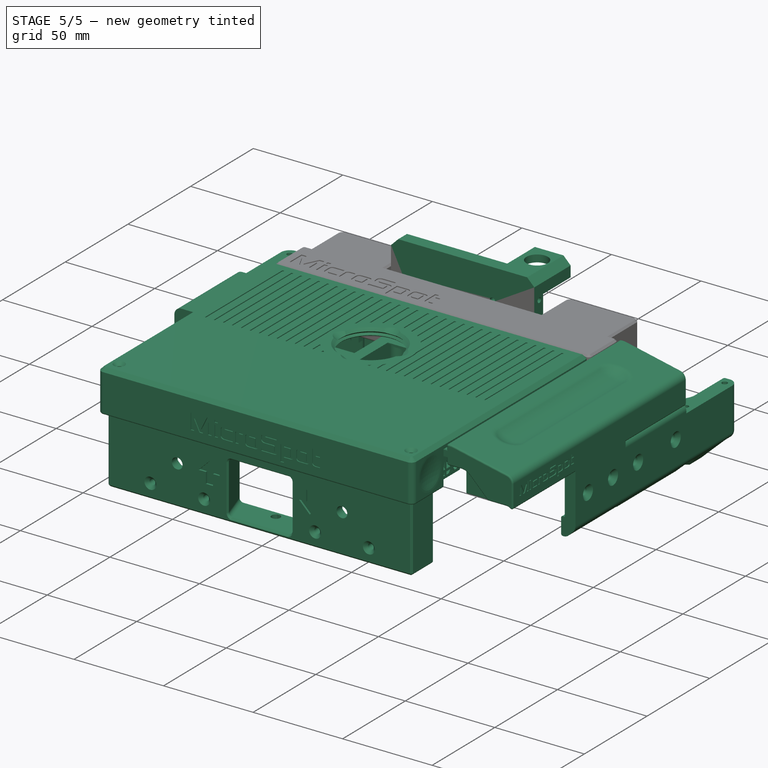
[diagram: stage 5 of 5 — iso view after this stage's code; geometry added in this stage tinted green]
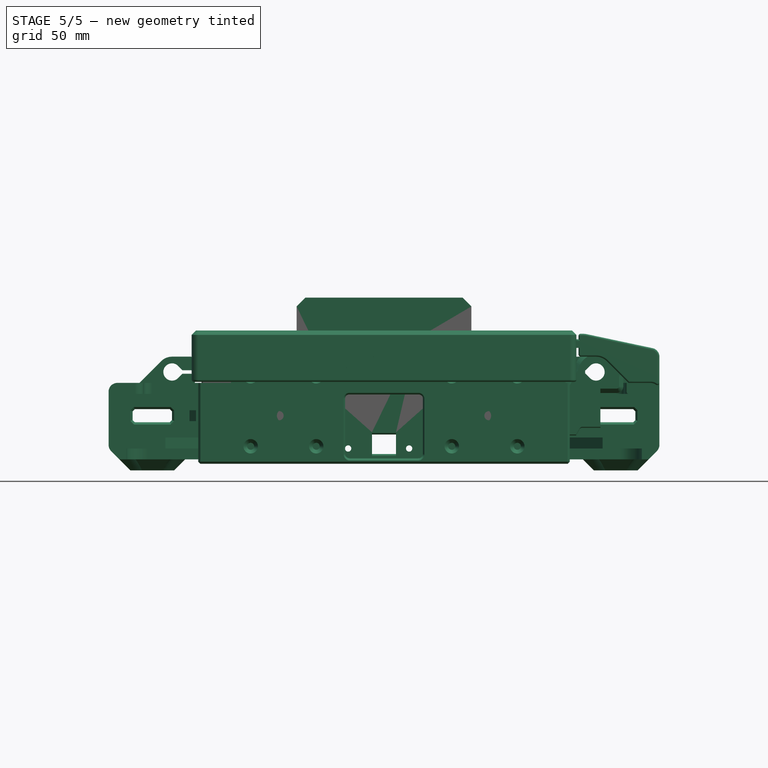
[diagram: stage 5 of 5 — front view after this stage's code; geometry added in this stage tinted green]
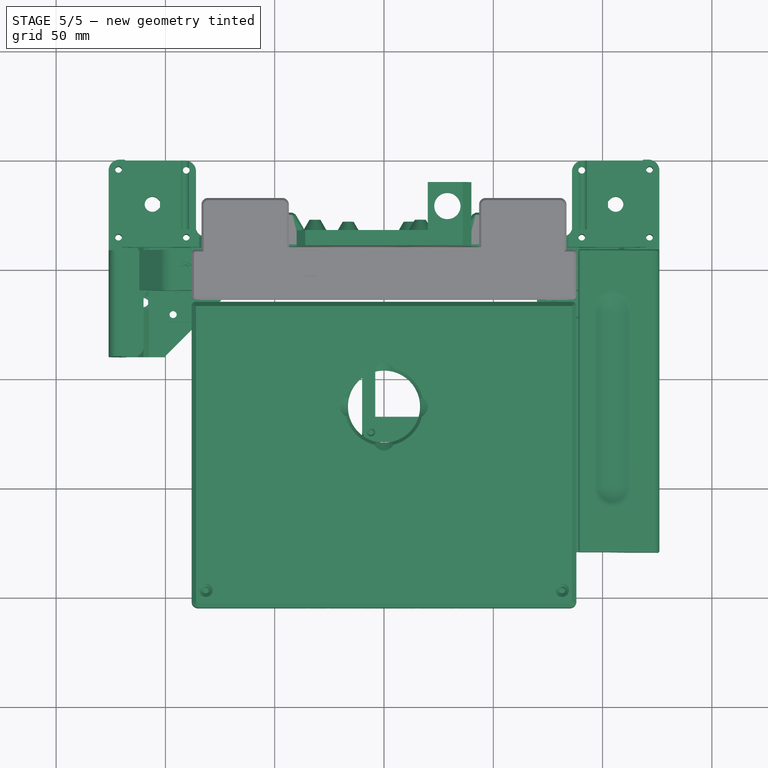
[diagram: stage 5 of 5 — top view after this stage's code; geometry added in this stage tinted green]
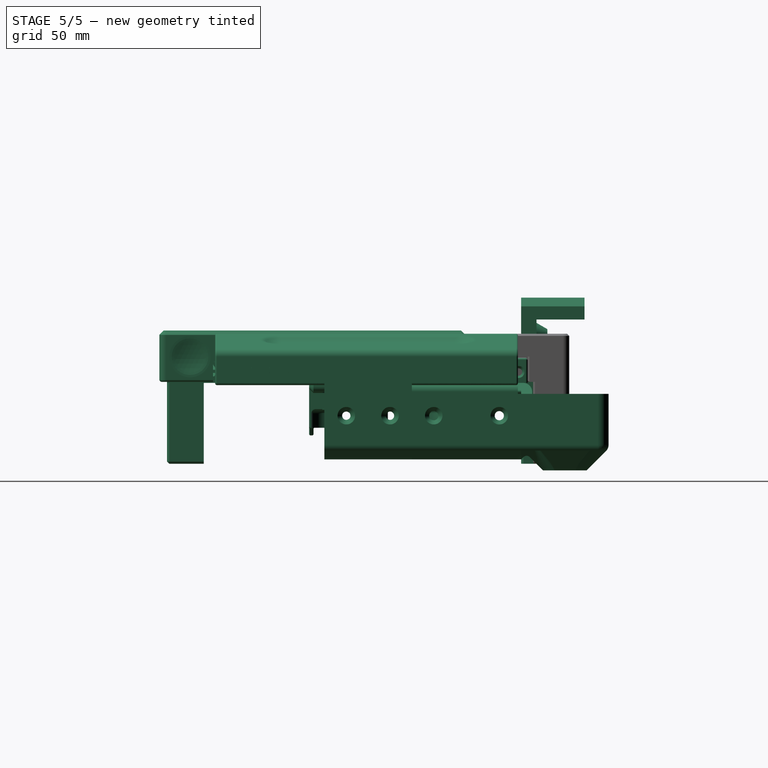
[diagram: stage 5 of 5 — right view after this stage's code; geometry added in this stage tinted green]
FEATURE [Spreadsheet::Sheet] Spreadsheet  label="pars"
  cells = A1=Bolts and Nuts; B1=Value; D1=Components; E1=Value; A2=Thread Tight Tolerance (Radius, ratio); B2(ThrTighRatio)=0.96; D2=Tight Cilinder Tolerances (Radius, mm); E2(CilTight)=0.1; A3=Thread Tight Tolerance (Radius, mm); B3(ThrTightmm)=0.1; D3=Loose Cilinder Tolerances (Radius, mm); E3(CilLoose)=0.1; A5=Nut Slot Width Clearance (mm); B5(NutWidthClearmm)=0.1; A6=Nut Slot Thickess Clearance (mm); B6(NutThickClearmm)=0.1; A13=Particular parameters; B13=Value; A14=ElecBase Clearance; B14(ElecClear)=0.5; A15=Ball Shape Tolerance; B15(BallShapeTol)=-0.054; A16=Rail Length; B16(RailLen)=38; A17=Rail Clearance; B17(RailClear)=0.5; A18=NEMA Clearance; B18(NEMAClear)=1.5; A19=Frame Clearance; B19(FrameClear)=0.5; A20=Guide Tightness; B20(GuideTight)=0.33; A21=Guide Separation; B21(GuideSep)=46; A22=Guide Bolts Separation; B22(GBoltSep)=15; A23=Material Reduction Wall Width; B23(MRWallWidth)=1.5; A24=Material Reduction Triangle Side; B24(MRTriSide)=7; A25=Drawer Guide Clearance; B25(DrawerClear)=0.25; A26=Magnet Diameter; B26(MagnetDia)=4.5; A27=Magnet Slot Tolerance; B27(MagTol)=0.2; A28=Lid Clearance; B28(LidClear)=0.5; A29=Extra Upper Volume; B29(EUVolume)=1.5
FEATURE [Part::FeaturePython] ElecBase_step1_01  label="ElecMain"  # a2plus imported part (geometry in sourceFile) (typed FeaturePython)
  Placement = pos=(0,10,-26) rot=(0,0,1;0rad)
  fixedPosition = false
  sourceFile = ./../../Electronics Holder/ElecMain.fcstd
  timeLastImport = 1.52266e+09
  updateColors = true
FEATURE [Part::FeaturePython] RBackCorner_step1_01  label="RBackCorner"  # a2plus imported part (geometry in sourceFile) (typed FeaturePython)
  Placement = pos=(106,30,-26) rot=(0,0,1;0rad)
  fixedPosition = false
  sourceFile = ./../../MainFrame/BackCorner.fcstd
  timeLastImport = 1.52292e+09
  updateColors = true
FEATURE [Part::FeaturePython] AxisShield_01  label="RAxisShield"  # a2plus imported part (geometry in sourceFile) (typed FeaturePython)
  Placement = pos=(110,-60,-36) rot=(0,0,1;0rad)
  fixedPosition = false
  sourceFile = ./../../MainFrame/AxisShield.fcstd
  timeLastImport = 1.53193e+09
  updateColors = true
FEATURE [Part::FeaturePython] LBackCorner_step1_01  label="LBackCorner"  # a2plus imported part (geometry in sourceFile) (typed FeaturePython)
  Placement = pos=(-106,30,-26) rot=(0,0,1;0rad)
  fixedPosition = true
  sourceFile = ./../../../Step/Printed/MainFrame/LBackCorner.step
  timeLastImport = 1.52292e+09
  updateColors = true
FEATURE [Part::Feature] Part__Mirroring007001001  label="T slot extrusion 20x20x200"
  Placement = pos=(0,0,-36) rot=(0,0,1;0rad)
  shape: bbox 200 x 20 x 20 mm, 51 faces (baked)
FEATURE [Part::Feature] Part__Feature002  label="4018X SNGL"
  Placement = pos=(106,30,0) rot=(0,1,0;3.14159rad)
  shape: bbox 40.13 x 132.8 x 41.15 mm, 30 faces (baked)
FEATURE [Part::FeaturePython] FrontCrane_01  label="FrontCrane"  # a2plus imported part (geometry in sourceFile) (typed FeaturePython)
  Placement = pos=(0,-135,-36) rot=(0,0,1;0rad)
  fixedPosition = false
  sourceFile = ./FrontCrane.fcstd
  timeLastImport = 1.52166e+09
  updateColors = true
FEATURE [Part::FeaturePython] SampleTray_01  label="StdTray"  # a2plus imported part (geometry in sourceFile) (typed FeaturePython)
  Placement = pos=(30,-56,-22) rot=(0,0,1;0rad)
  fixedPosition = false
  sourceFile = ./../XCarriage/StdTray/StdTray.fcstd
  timeLastImport = 1.53193e+09
  updateColors = true
FEATURE [Part::FeaturePython] YCarriage_01  label="RYCarriage"  # a2plus imported part (geometry in sourceFile) (typed FeaturePython)
  Placement = pos=(70,-56,-36) rot=(0,0,1;0rad)
  fixedPosition = false
  sourceFile = ./../../../Step/Printed/Axes/YCarriage/RYCarriage.step
  timeLastImport = 1.5206e+09
  updateColors = true
FEATURE [Part::FeaturePython] Clone005  label="Clone of GuideTool001"  # Draft clone (typed FeaturePython)
  Objects = -> [Pad007]
  Placement = pos=(0,26.5,0) rot=(1,0,0;1.5708rad)
  Scale = (1,1,1)
FEATURE [App::DocumentObjectGroup] Group006  label="MR_src"
  Group = -> [Pad008,Array001,Common001]
FEATURE [Part::FeaturePython] UpperLidRail_01  label="UpperLidRail"  # a2plus imported part (geometry in sourceFile) (typed FeaturePython)
  Placement = pos=(78,-152.5,-21) rot=(0,0,1;0rad)
  fixedPosition = false
  sourceFile = ./../../UpperLid/UpperLidRail.fcstd
  timeLastImport = 1.53193e+09
  updateColors = true
FEATURE [App::DocumentObjectGroup] Group004  label="Component_src"
  Group = -> [Pad005,Revolution001,Pad006,Revolution,Pad009]
FEATURE [Part::FeaturePython] DrawerGuide_01  label="DrawerGuide"  # a2plus imported part (geometry in sourceFile) (typed FeaturePython)
  Placement = pos=(70,-152,-21) rot=(0,0,1;0rad)
  fixedPosition = false
  sourceFile = ./DrawerGuide.fcstd
  timeLastImport = 1.53236e+09
  updateColors = true
FEATURE [Part::FeaturePython] UpperCover_01  label="UpperCover"  # a2plus imported part (geometry in sourceFile) (typed FeaturePython)
  Placement = pos=(0,-63.5,-1) rot=(0,0,1;0rad)
  fixedPosition = false
  sourceFile = ./../../UpperLid/UpperCover.fcstd
  timeLastImport = 1.53236e+09
  updateColors = true
FEATURE [Part::FeaturePython] Clone006  label="Clone of RailBoltCut"  # Draft clone (typed FeaturePython)
  Objects = -> [Cut007]
  Scale = (1,1,1)
FEATURE [Part::MultiCommon] Common  label="RailCommon"
  Shapes = -> [Clone005,Clone006]
FEATURE [Part::FeaturePython] refine002  label="refine_RailCommon"  # WARN: FeaturePython — macro-defined, semantics opaque (R4)
  Base = -> Common
FEATURE [Part::Cut] Cut019  label="SignCut"
  Base = -> refine005
  Tool = -> Clone025
FEATURE [App::DocumentObjectGroup] Group001  label="src"
  Group = -> [Fillet,Cut008,refine004,Cut017,Cut019]
FEATURE [Part::FeaturePython] Clone026  label="UpperBackCover"  # Draft clone (typed FeaturePython)
  Objects = -> [Cut019]
  Scale = (1,1,1)
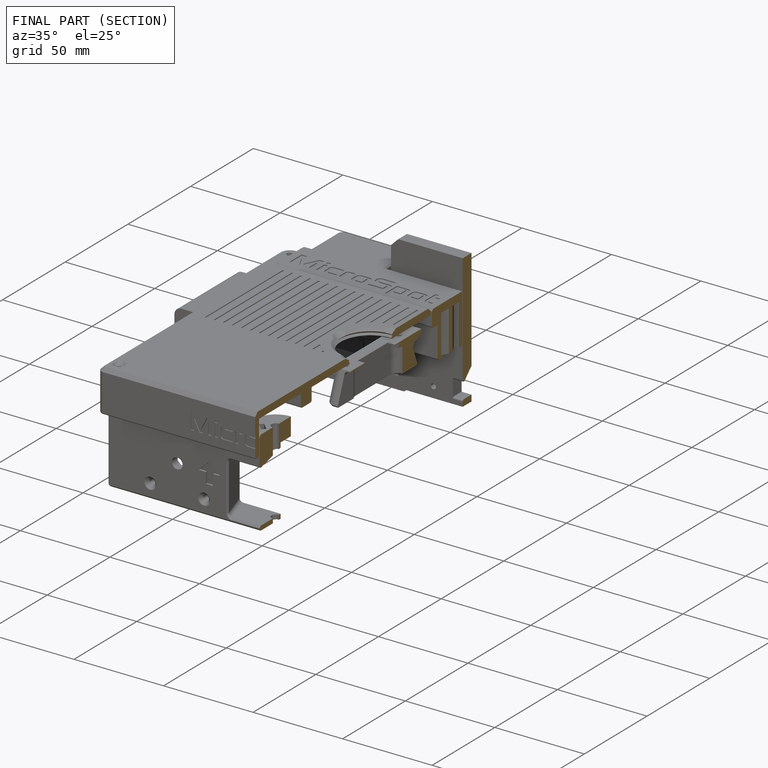
[diagram: finished part — half-section view (interior)]
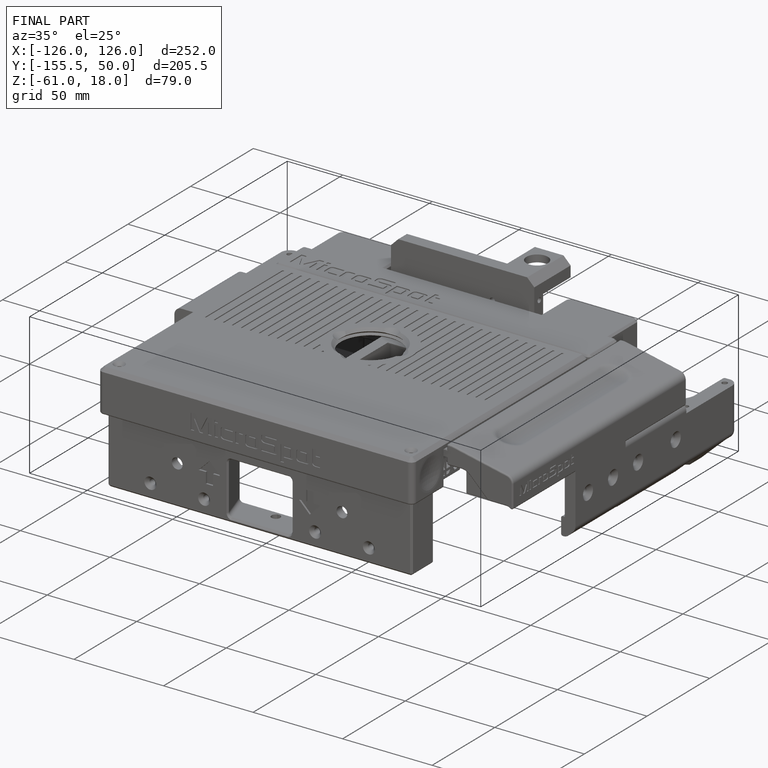
[diagram: finished part — iso view with bounding-box wireframe]
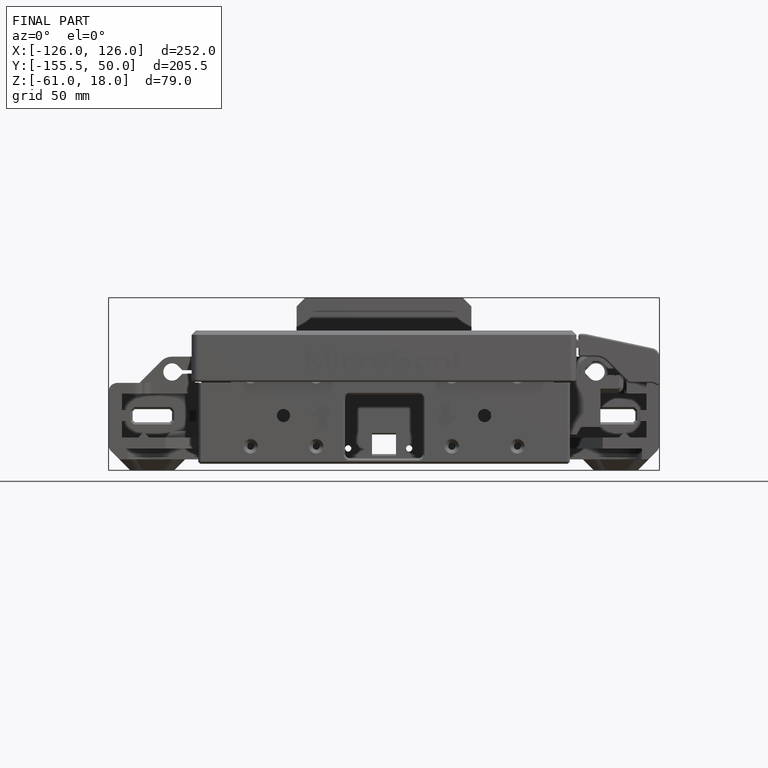
[diagram: finished part — front view with bounding-box wireframe]
